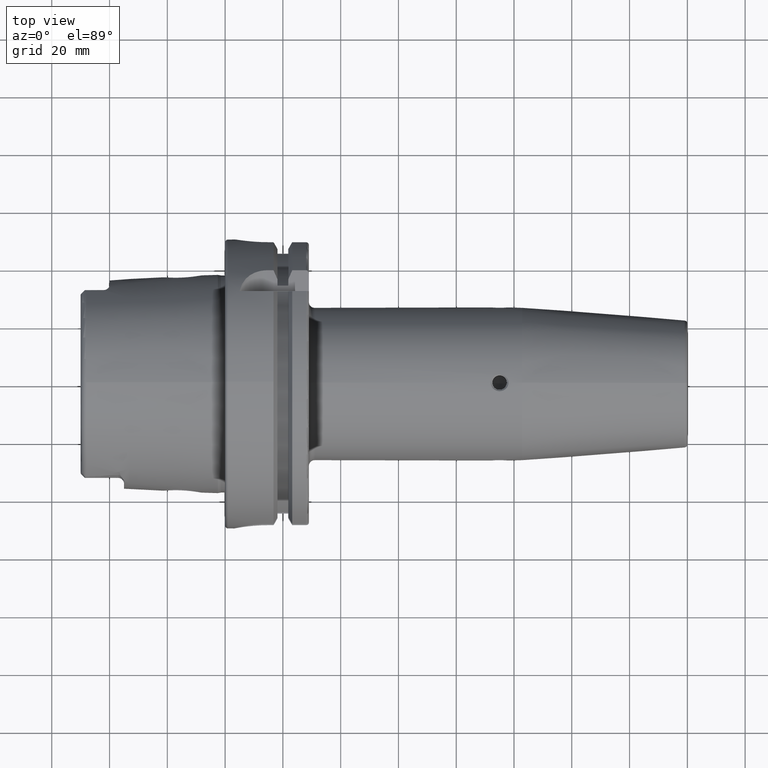
[diagram: clean part render]
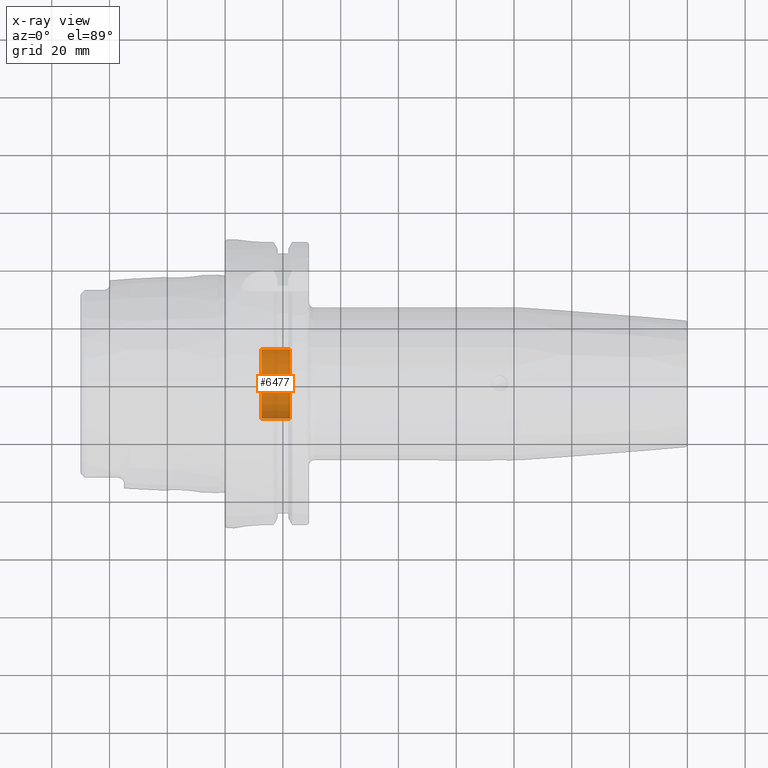
[diagram: x-ray — body ghosted, one internal face saturated and labeled with its STEP entity id]
A machine part, top view, then the same camera in x-ray: the body is ghosted and one INTERNAL B-rep face — a face not visible from any outside direction — is saturated and labeled: STEP entity #6477.
In plain terms, the highlighted cylindrical surface (edge-blend (fillet) strip) has radius 12 mm, axis along (-1, 0, 0).
Its self-contained STEP definition (entity closure, byte-faithful):
#6426=CARTESIAN_POINT('',(1.25E1,0.E0,0.E0));
#6427=DIRECTION('',(1.E0,0.E0,0.E0));
#6428=DIRECTION('',(0.E0,-1.E0,0.E0));
#6429=AXIS2_PLACEMENT_3D('',#6426,#6427,#6428);
#6436=DIRECTION('',(1.E0,0.E0,0.E0));
#6437=VECTOR('',#6436,1.E1);
#6438=CARTESIAN_POINT('',(1.25E1,-1.2E1,0.E0));
#6439=LINE('',#6438,#6437);
#6440=DIRECTION('',(1.E0,0.E0,0.E0));
#6441=VECTOR('',#6440,1.E1);
#6442=CARTESIAN_POINT('',(1.25E1,1.2E1,0.E0));
#6443=LINE('',#6442,#6441);
#6449=CARTESIAN_POINT('',(2.25E1,0.E0,0.E0));
#6450=DIRECTION('',(-1.E0,0.E0,0.E0));
#6451=DIRECTION('',(0.E0,1.E0,0.E0));
#6452=AXIS2_PLACEMENT_3D('',#6449,#6450,#6451);
#6454=CARTESIAN_POINT('',(2.25E1,1.2E1,0.E0));
#6455=CARTESIAN_POINT('',(2.25E1,-1.2E1,0.E0));
#6456=VERTEX_POINT('',#6454);
#6457=VERTEX_POINT('',#6455);
#6458=CARTESIAN_POINT('',(1.25E1,1.2E1,0.E0));
#6459=CARTESIAN_POINT('',(1.25E1,-1.2E1,0.E0));
#6460=VERTEX_POINT('',#6458);
#6461=VERTEX_POINT('',#6459);
#6462=CARTESIAN_POINT('',(2.3E1,0.E0,0.E0));
#6463=DIRECTION('',(-1.E0,0.E0,0.E0));
#6464=DIRECTION('',(0.E0,1.E0,0.E0));
#6465=AXIS2_PLACEMENT_3D('',#6462,#6463,#6464);
#6466=CYLINDRICAL_SURFACE('',#6465,1.2E1);
#6468=ORIENTED_EDGE('',*,*,#6467,.T.);
#6470=ORIENTED_EDGE('',*,*,#6469,.T.);
#6472=ORIENTED_EDGE('',*,*,#6471,.T.);
#6474=ORIENTED_EDGE('',*,*,#6473,.F.);
#6475=EDGE_LOOP('',(#6468,#6470,#6472,#6474));
#6476=FACE_OUTER_BOUND('',#6475,.F.);
#6477=ADVANCED_FACE('',(#6476),#6466,.F.);
#6430=CIRCLE('',#6429,1.2E1);
#6453=CIRCLE('',#6452,1.2E1);
#6467=EDGE_CURVE('',#6461,#6460,#6430,.T.);
#6469=EDGE_CURVE('',#6460,#6456,#6443,.T.);
#6471=EDGE_CURVE('',#6456,#6457,#6453,.T.);
#6473=EDGE_CURVE('',#6461,#6457,#6439,.T.);